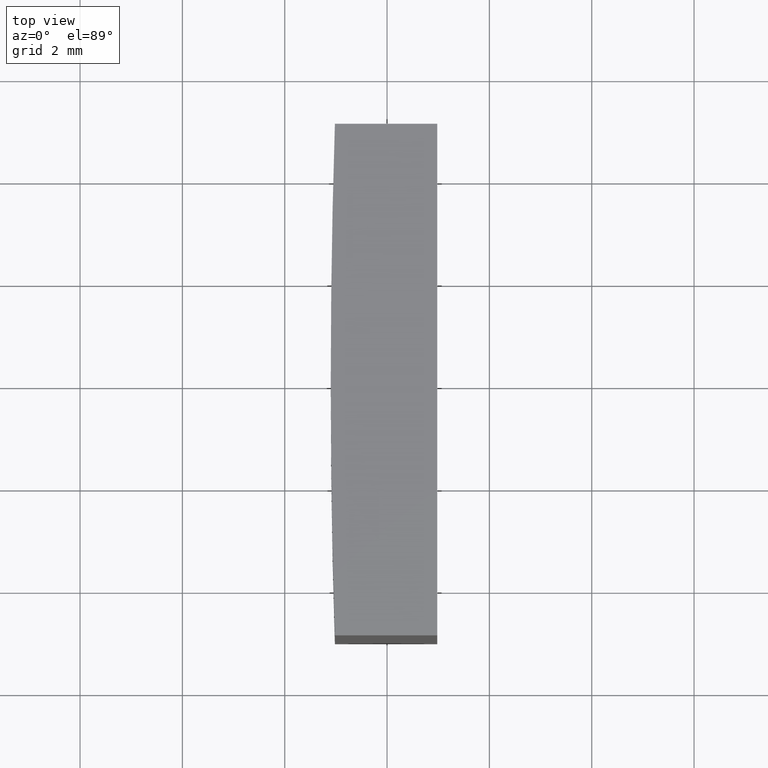
[diagram: clean part render]
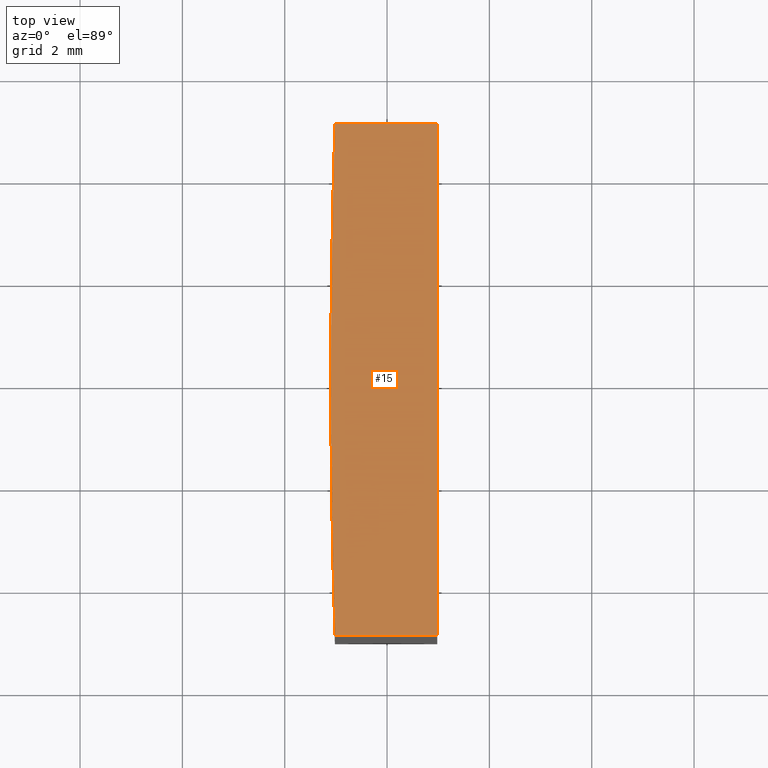
[diagram: same view with one face highlighted and labeled with its STEP entity id]
A machine part, top view. The second image highlights one B-rep face of the part: STEP entity #15.
In plain terms, the highlighted planar face has unit normal (0, 0, 1).
Its self-contained STEP definition (entity closure, byte-faithful):
#3 = VECTOR ( 'NONE', #138, 1000.000000000000000 ) ;
#4 = ORIENTED_EDGE ( 'NONE', *, *, #199, .T. ) ;
#5 = EDGE_CURVE ( 'NONE', #11, #133, #135, .T. ) ;
#11 = VERTEX_POINT ( 'NONE', #204 ) ;
#15 = ADVANCED_FACE ( 'NONE', ( #17 ), #157, .T. ) ;
#17 = FACE_OUTER_BOUND ( 'NONE', #236, .T. ) ;
#19 = AXIS2_PLACEMENT_3D ( 'NONE', #56, #265, #142 ) ;
#20 = CARTESIAN_POINT ( 'NONE',  ( -155.0193858844757244, -5.000000000000000000, 10.00000000000000000 ) ) ;
#21 = CARTESIAN_POINT ( 'NONE',  ( -153.0193858844757244, 5.000000000000000000, 10.00000000000000000 ) ) ;
#22 = VECTOR ( 'NONE', #105, 1000.000000000000000 ) ;
#32 = ORIENTED_EDGE ( 'NONE', *, *, #55, .T. ) ;
#38 = CARTESIAN_POINT ( 'NONE',  ( 0.000000000000000000, 0.000000000000000000, 10.00000000000000000 ) ) ;
#43 = LINE ( 'NONE', #249, #22 ) ;
#45 = ORIENTED_EDGE ( 'NONE', *, *, #268, .T. ) ;
#49 = ORIENTED_EDGE ( 'NONE', *, *, #97, .T. ) ;
#55 = EDGE_CURVE ( 'NONE', #133, #67, #99, .T. ) ;
#56 = CARTESIAN_POINT ( 'NONE',  ( 0.000000000000000000, 0.000000000000000000, 10.00000000000000000 ) ) ;
#62 = AXIS2_PLACEMENT_3D ( 'NONE', #110, #178, #76 ) ;
#67 = VERTEX_POINT ( 'NONE', #98 ) ;
#76 = DIRECTION ( 'NONE',  ( 1.000000000000000000, 0.000000000000000000, 0.000000000000000000 ) ) ;
#97 = EDGE_CURVE ( 'NONE', #233, #11, #176, .T. ) ;
#98 = CARTESIAN_POINT ( 'NONE',  ( -155.0193858844757244, -5.000000000000000000, 10.00000000000000000 ) ) ;
#99 = CIRCLE ( 'NONE', #206, 155.0999999999999943 ) ;
#105 = DIRECTION ( 'NONE',  ( -0.000000000000000000, 1.000000000000000000, -0.000000000000000000 ) ) ;
#110 = CARTESIAN_POINT ( 'NONE',  ( 0.000000000000000000, 0.000000000000000000, 10.00000000000000000 ) ) ;
#116 = CARTESIAN_POINT ( 'NONE',  ( -155.0999999999999943, 0.000000000000000000, 10.00000000000000000 ) ) ;
#133 = VERTEX_POINT ( 'NONE', #116 ) ;
#135 = CIRCLE ( 'NONE', #62, 155.0999999999999943 ) ;
#138 = DIRECTION ( 'NONE',  ( -1.000000000000000000, -0.000000000000000000, -0.000000000000000000 ) ) ;
#141 = DIRECTION ( 'NONE',  ( 0.000000000000000000, 0.000000000000000000, 1.000000000000000000 ) ) ;
#142 = DIRECTION ( 'NONE',  ( 1.000000000000000000, 0.000000000000000000, -0.000000000000000000 ) ) ;
#157 = PLANE ( 'NONE',  #19 ) ;
#165 = DIRECTION ( 'NONE',  ( 1.000000000000000000, 0.000000000000000000, 0.000000000000000000 ) ) ;
#170 = ORIENTED_EDGE ( 'NONE', *, *, #5, .T. ) ;
#176 = LINE ( 'NONE', #270, #3 ) ;
#178 = DIRECTION ( 'NONE',  ( 0.000000000000000000, 0.000000000000000000, 1.000000000000000000 ) ) ;
#181 = DIRECTION ( 'NONE',  ( 1.000000000000000000, 0.000000000000000000, 0.000000000000000000 ) ) ;
#191 = VECTOR ( 'NONE', #165, 1000.000000000000000 ) ;
#199 = EDGE_CURVE ( 'NONE', #67, #219, #228, .T. ) ;
#204 = CARTESIAN_POINT ( 'NONE',  ( -155.0193858844757244, 5.000000000000000000, 10.00000000000000000 ) ) ;
#206 = AXIS2_PLACEMENT_3D ( 'NONE', #38, #141, #181 ) ;
#207 = CARTESIAN_POINT ( 'NONE',  ( -153.0193858844757244, -5.000000000000000000, 10.00000000000000000 ) ) ;
#219 = VERTEX_POINT ( 'NONE', #207 ) ;
#228 = LINE ( 'NONE', #20, #191 ) ;
#233 = VERTEX_POINT ( 'NONE', #21 ) ;
#236 = EDGE_LOOP ( 'NONE', ( #170, #32, #4, #45, #49 ) ) ;
#249 = CARTESIAN_POINT ( 'NONE',  ( -153.0193858844757244, 5.000000000000000000, 10.00000000000000000 ) ) ;
#265 = DIRECTION ( 'NONE',  ( 0.000000000000000000, 0.000000000000000000, 1.000000000000000000 ) ) ;
#268 = EDGE_CURVE ( 'NONE', #219, #233, #43, .T. ) ;
#270 = CARTESIAN_POINT ( 'NONE',  ( -155.0193858844757244, 5.000000000000000000, 10.00000000000000000 ) ) ;